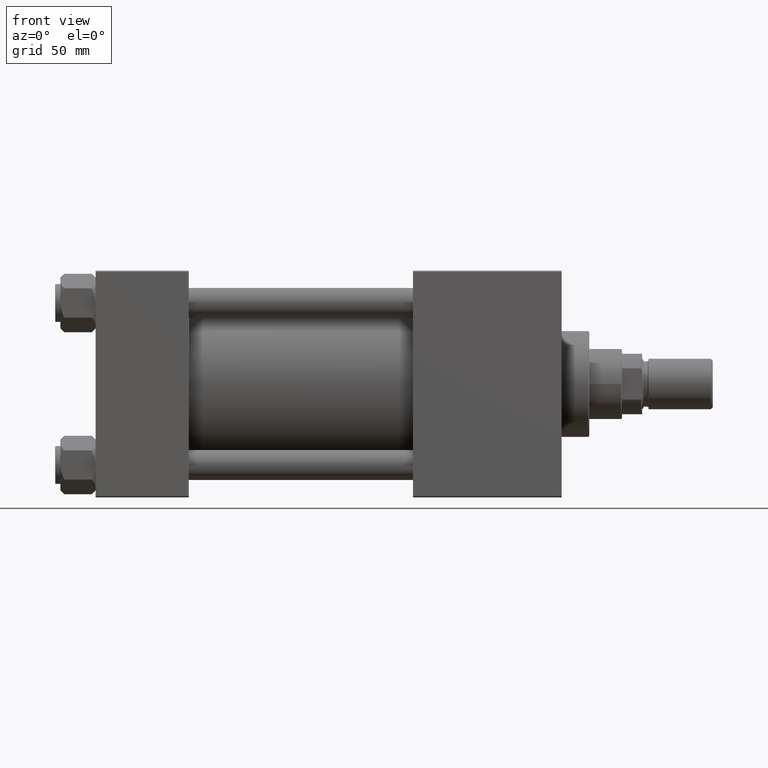
[diagram: clean part render]
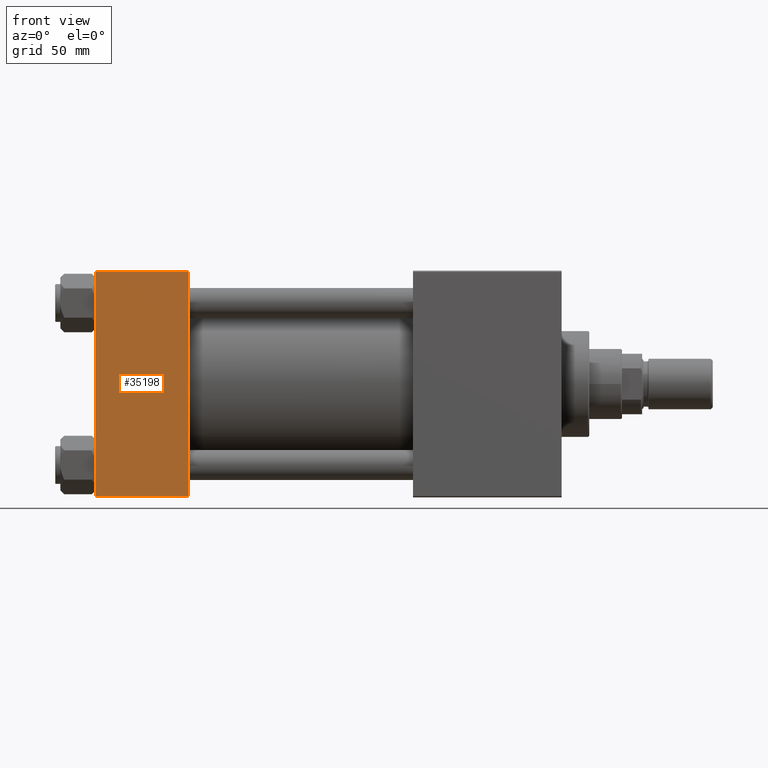
[diagram: same view with one face highlighted and labeled with its STEP entity id]
A machine part, front view. The second image highlights one B-rep face of the part: STEP entity #35198.
In plain terms, the highlighted planar face has unit normal (0, 1, 0).
Its self-contained STEP definition (entity closure, byte-faithful):
#2319 = CARTESIAN_POINT ( 'NONE',  ( 0.000000000000000000, -45.00000000000000711, 44.49999999999997158 ) ) ;
#2391 = DIRECTION ( 'NONE',  ( -1.000000000000000000, 0.000000000000000000, 0.000000000000000000 ) ) ;
#4199 = DIRECTION ( 'NONE',  ( -0.000000000000000000, 1.000000000000000000, 7.709882115452478166E-17 ) ) ;
#6908 = LINE ( 'NONE', #22609, #22828 ) ;
#9059 = LINE ( 'NONE', #20915, #25425 ) ;
#16008 = CARTESIAN_POINT ( 'NONE',  ( 37.00000000000000000, -45.00000000000000711, 45.00000000000000000 ) ) ;
#16983 = EDGE_CURVE ( 'NONE', #44352, #42610, #28580, .T. ) ;
#18080 = EDGE_CURVE ( 'NONE', #42610, #33166, #19271, .T. ) ;
#19271 = LINE ( 'NONE', #39323, #29211 ) ;
#19314 = ORIENTED_EDGE ( 'NONE', *, *, #16983, .T. ) ;
#20915 = CARTESIAN_POINT ( 'NONE',  ( 37.00000000000000000, -45.00000000000000711, 44.49999999999997158 ) ) ;
#22609 = CARTESIAN_POINT ( 'NONE',  ( 37.00000000000000000, -45.00000000000000711, 45.00000000000000000 ) ) ;
#22828 = VECTOR ( 'NONE', #38282, 1000.000000000000000 ) ;
#24345 = EDGE_CURVE ( 'NONE', #44176, #33166, #6908, .T. ) ;
#25425 = VECTOR ( 'NONE', #2391, 1000.000000000000000 ) ;
#28240 = EDGE_LOOP ( 'NONE', ( #19314, #43025, #34611, #39950 ) ) ;
#28580 = LINE ( 'NONE', #32950, #38179 ) ;
#28838 = DIRECTION ( 'NONE',  ( 0.000000000000000000, 7.709882115452476934E-17, -1.000000000000000000 ) ) ;
#29211 = VECTOR ( 'NONE', #34723, 1000.000000000000000 ) ;
#32950 = CARTESIAN_POINT ( 'NONE',  ( 0.000000000000000000, -45.00000000000000711, 45.00000000000000000 ) ) ;
#33166 = VERTEX_POINT ( 'NONE', #49469 ) ;
#34611 = ORIENTED_EDGE ( 'NONE', *, *, #24345, .F. ) ;
#34723 = DIRECTION ( 'NONE',  ( 1.000000000000000000, 0.000000000000000000, 0.000000000000000000 ) ) ;
#35198 = ADVANCED_FACE ( 'NONE', ( #35569 ), #47653, .F. ) ;
#35569 = FACE_OUTER_BOUND ( 'NONE', #28240, .T. ) ;
#38101 = CARTESIAN_POINT ( 'NONE',  ( 37.00000000000000000, -45.00000000000000711, 44.49999999999997158 ) ) ;
#38179 = VECTOR ( 'NONE', #28838, 1000.000000000000000 ) ;
#38282 = DIRECTION ( 'NONE',  ( 0.000000000000000000, 7.709882115452476934E-17, -1.000000000000000000 ) ) ;
#39323 = CARTESIAN_POINT ( 'NONE',  ( 37.00000000000000000, -45.00000000000000000, -44.49999999999998579 ) ) ;
#39932 = DIRECTION ( 'NONE',  ( 0.000000000000000000, -7.709882115452478166E-17, 1.000000000000000000 ) ) ;
#39950 = ORIENTED_EDGE ( 'NONE', *, *, #44517, .T. ) ;
#41914 = AXIS2_PLACEMENT_3D ( 'NONE', #16008, #4199, #39932 ) ;
#42610 = VERTEX_POINT ( 'NONE', #44161 ) ;
#43025 = ORIENTED_EDGE ( 'NONE', *, *, #18080, .T. ) ;
#44161 = CARTESIAN_POINT ( 'NONE',  ( 0.000000000000000000, -45.00000000000000000, -44.49999999999995737 ) ) ;
#44176 = VERTEX_POINT ( 'NONE', #38101 ) ;
#44352 = VERTEX_POINT ( 'NONE', #2319 ) ;
#44517 = EDGE_CURVE ( 'NONE', #44176, #44352, #9059, .T. ) ;
#47653 = PLANE ( 'NONE',  #41914 ) ;
#49469 = CARTESIAN_POINT ( 'NONE',  ( 37.00000000000000000, -45.00000000000000000, -44.49999999999995737 ) ) ;